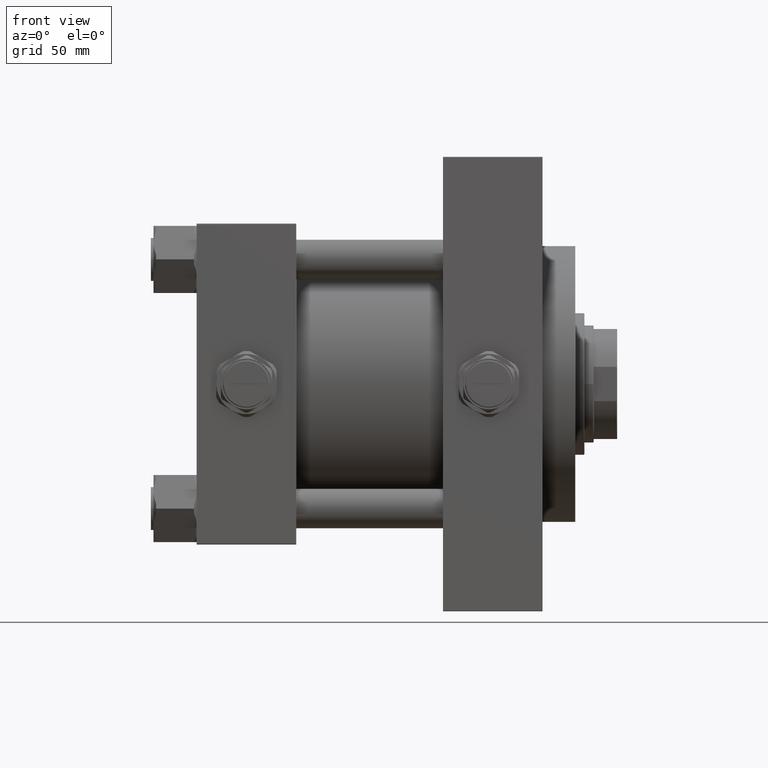
[diagram: clean part render]
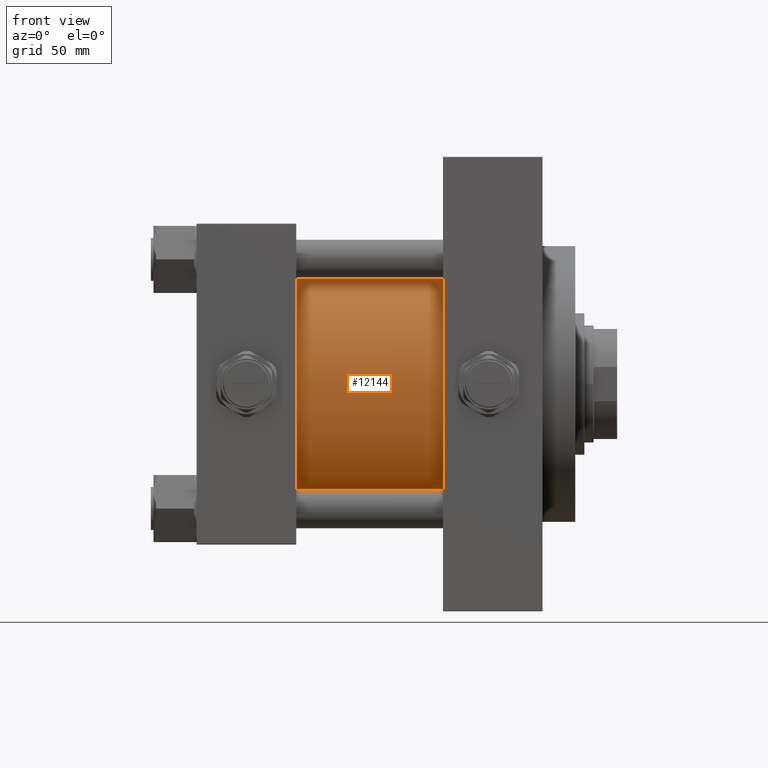
[diagram: same view with one face highlighted and labeled with its STEP entity id]
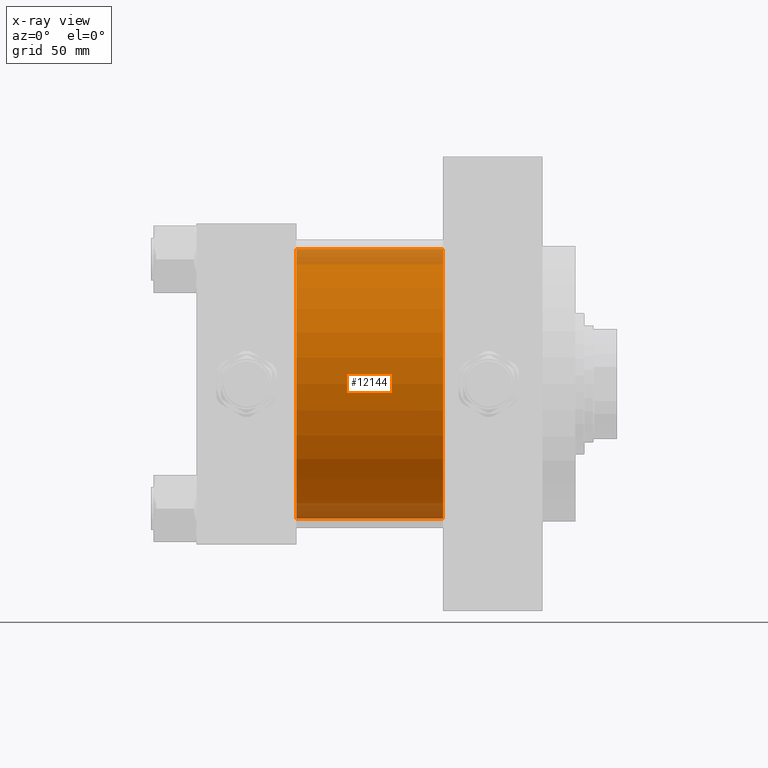
[diagram: x-ray of the same camera — body ghosted, the highlighted face saturated]
A machine part, front view. The second image highlights one B-rep face of the part: STEP entity #12144.
The next image is the same camera in x-ray: the body ghosted, the highlighted face saturated — about 12% of this face is hidden behind the body in this view.
In plain terms, the highlighted cylindrical surface (partial cylindrical patch) has radius 103 mm, axis along (-1, -0, -0).
Its self-contained STEP definition (entity closure, byte-faithful):
#2308 = ORIENTED_EDGE ( 'NONE', *, *, #4011, .T. ) ;
#4011 = EDGE_CURVE ( 'NONE', #18680, #33103, #23815, .T. ) ;
#4544 = DIRECTION ( 'NONE',  ( 0.000000000000000000, 0.000000000000000000, 1.000000000000000000 ) ) ;
#6746 = ORIENTED_EDGE ( 'NONE', *, *, #43122, .T. ) ;
#7141 = CARTESIAN_POINT ( 'NONE',  ( 188.0000000000000000, -2.602085213965210642E-15, 103.0000000000000000 ) ) ;
#7325 = CYLINDRICAL_SURFACE ( 'NONE', #32766, 103.0000000000000000 ) ;
#7399 = CARTESIAN_POINT ( 'NONE',  ( 76.00000000000000000, -2.602085213965210642E-15, 0.000000000000000000 ) ) ;
#8242 = VERTEX_POINT ( 'NONE', #45153 ) ;
#11292 = DIRECTION ( 'NONE',  ( 0.000000000000000000, 0.000000000000000000, -1.000000000000000000 ) ) ;
#11434 = CARTESIAN_POINT ( 'NONE',  ( 76.00000000000000000, -2.602085213965210642E-15, 103.0000000000000000 ) ) ;
#12144 = ADVANCED_FACE ( 'NONE', ( #38963 ), #7325, .T. ) ;
#12911 = LINE ( 'NONE', #28245, #42711 ) ;
#14288 = EDGE_CURVE ( 'NONE', #21466, #8242, #30448, .T. ) ;
#15802 = CARTESIAN_POINT ( 'NONE',  ( 188.0000000000000000, -2.602085213965210642E-15, 0.000000000000000000 ) ) ;
#18456 = LINE ( 'NONE', #7141, #31080 ) ;
#18680 = VERTEX_POINT ( 'NONE', #11434 ) ;
#21466 = VERTEX_POINT ( 'NONE', #25141 ) ;
#21718 = EDGE_LOOP ( 'NONE', ( #48702, #41639, #6746, #2308 ) ) ;
#22473 = DIRECTION ( 'NONE',  ( -1.000000000000000000, -0.000000000000000000, -0.000000000000000000 ) ) ;
#22723 = DIRECTION ( 'NONE',  ( 1.000000000000000000, -0.000000000000000000, -0.000000000000000000 ) ) ;
#22974 = DIRECTION ( 'NONE',  ( 0.000000000000000000, 0.000000000000000000, 1.000000000000000000 ) ) ;
#23019 = AXIS2_PLACEMENT_3D ( 'NONE', #7399, #22723, #22974 ) ;
#23815 = CIRCLE ( 'NONE', #23019, 103.0000000000000000 ) ;
#24802 = AXIS2_PLACEMENT_3D ( 'NONE', #15802, #45744, #11292 ) ;
#25141 = CARTESIAN_POINT ( 'NONE',  ( 188.0000000000000000, -2.602085213965210642E-15, 103.0000000000000000 ) ) ;
#27421 = CARTESIAN_POINT ( 'NONE',  ( 188.0000000000000000, -2.602085213965210642E-15, 0.000000000000000000 ) ) ;
#28163 = EDGE_CURVE ( 'NONE', #8242, #33103, #12911, .T. ) ;
#28245 = CARTESIAN_POINT ( 'NONE',  ( 188.0000000000000000, 1.001177681725252697E-14, -103.0000000000000000 ) ) ;
#30448 = CIRCLE ( 'NONE', #24802, 103.0000000000000000 ) ;
#31080 = VECTOR ( 'NONE', #22473, 1000.000000000000000 ) ;
#32766 = AXIS2_PLACEMENT_3D ( 'NONE', #27421, #49550, #4544 ) ;
#33103 = VERTEX_POINT ( 'NONE', #47793 ) ;
#38963 = FACE_OUTER_BOUND ( 'NONE', #21718, .T. ) ;
#41639 = ORIENTED_EDGE ( 'NONE', *, *, #14288, .F. ) ;
#42711 = VECTOR ( 'NONE', #43587, 1000.000000000000000 ) ;
#43122 = EDGE_CURVE ( 'NONE', #21466, #18680, #18456, .T. ) ;
#43587 = DIRECTION ( 'NONE',  ( -1.000000000000000000, -0.000000000000000000, -0.000000000000000000 ) ) ;
#45153 = CARTESIAN_POINT ( 'NONE',  ( 188.0000000000000000, 1.001177681725252697E-14, -103.0000000000000000 ) ) ;
#45744 = DIRECTION ( 'NONE',  ( 1.000000000000000000, 0.000000000000000000, 0.000000000000000000 ) ) ;
#47793 = CARTESIAN_POINT ( 'NONE',  ( 76.00000000000000000, 1.001177681725252697E-14, -103.0000000000000000 ) ) ;
#48702 = ORIENTED_EDGE ( 'NONE', *, *, #28163, .F. ) ;
#49550 = DIRECTION ( 'NONE',  ( -1.000000000000000000, -0.000000000000000000, -0.000000000000000000 ) ) ;